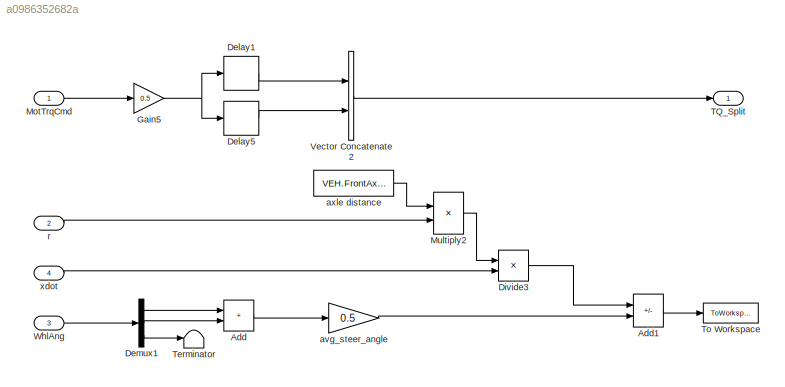
MODEL slx_a0986352682a
KIND model
CONFIG AbsTol = auto
CONFIG EnableMultiTasking = on
CONFIG FixedStep = 0.01
CONFIG MaxStep = auto
CONFIG MinStep = auto
CONFIG RelTol = 1e-3
CONFIG SampleTimeConstraint = Unconstrained
CONFIG Solver = FixedStepDiscrete
CONFIG SolverName = FixedStepDiscrete
CONFIG StartTime = 0.0
CONFIG StopTime = inf
BLOCK [Sum] Add
  IconShape = rectangular
  Ports = [2, 1]
BLOCK [Sum] Add1
  IconShape = rectangular
  Inputs = +-
  Ports = [2, 1]
BLOCK [Delay] Delay1
  DelayLength = 1
  InitialCondition = 0
  InputPortMap = u0
  Ports = [1, 1]
BLOCK [Delay] Delay5
  DelayLength = 1
  InitialCondition = 0
  InputPortMap = u0
  Ports = [1, 1]
BLOCK [Demux] Demux1
  Outputs = [1 1 2]
  Ports = [1, 3]
BLOCK [Product] Divide3
  Inputs = */
  Ports = [2, 1]
BLOCK [Gain] Gain5
  Gain = 0.5
BLOCK [Inport] MotTrqCmd
BLOCK [Product] Multiply2
  Ports = [2, 1]
BLOCK [Outport] TQ_Split
  VectorParamsAs1DForOutWhenUnconnected = off
BLOCK [Terminator] Terminator
BLOCK [ToWorkspace] To Workspace
  Commented = on
  FixptAsFi = on
  MaxDataPoints = inf
  Ports = [1]
  SampleTime = -1
  SaveFormat = Timeseries
  VariableName = delta_alpha
BLOCK [Concatenate] Vector Concatenate2
  Ports = [2, 1]
BLOCK [Inport] WhlAng
  Port = 3
BLOCK [Gain] avg_steer_angle
  Gain = 0.5
BLOCK [Constant] axle distance
  Value = VEH.FrontAxlePositionfromCG + VEH.RearAxlePositionfromCG %1.515+1.504
BLOCK [Inport] r
  Port = 2
BLOCK [Inport] xdot
  Port = 4
LINE Add1:1 -> To Workspace:1
LINE Add:1 -> avg_steer_angle:1
LINE Delay1:1 -> Vector Concatenate2:1
LINE Delay5:1 -> Vector Concatenate2:2
LINE Demux1:1 -> Add:1
LINE Demux1:2 -> Add:2
LINE Demux1:3 -> Terminator:1
LINE Divide3:1 -> Add1:1
NET Gain5:1 -> Delay1:1, Delay5:1
LINE MotTrqCmd:1 -> Gain5:1
LINE Multiply2:1 -> Divide3:1
LINE Vector Concatenate2:1 -> TQ_Split:1
LINE WhlAng:1 -> Demux1:1
LINE avg_steer_angle:1 -> Add1:2
LINE axle distance:1 -> Multiply2:1
LINE r:1 -> Multiply2:2
LINE xdot:1 -> Divide3:2
note: NET lines group one-source signal fan-out (src -> all destinations, sorted); 1:1 wires keep LINE
